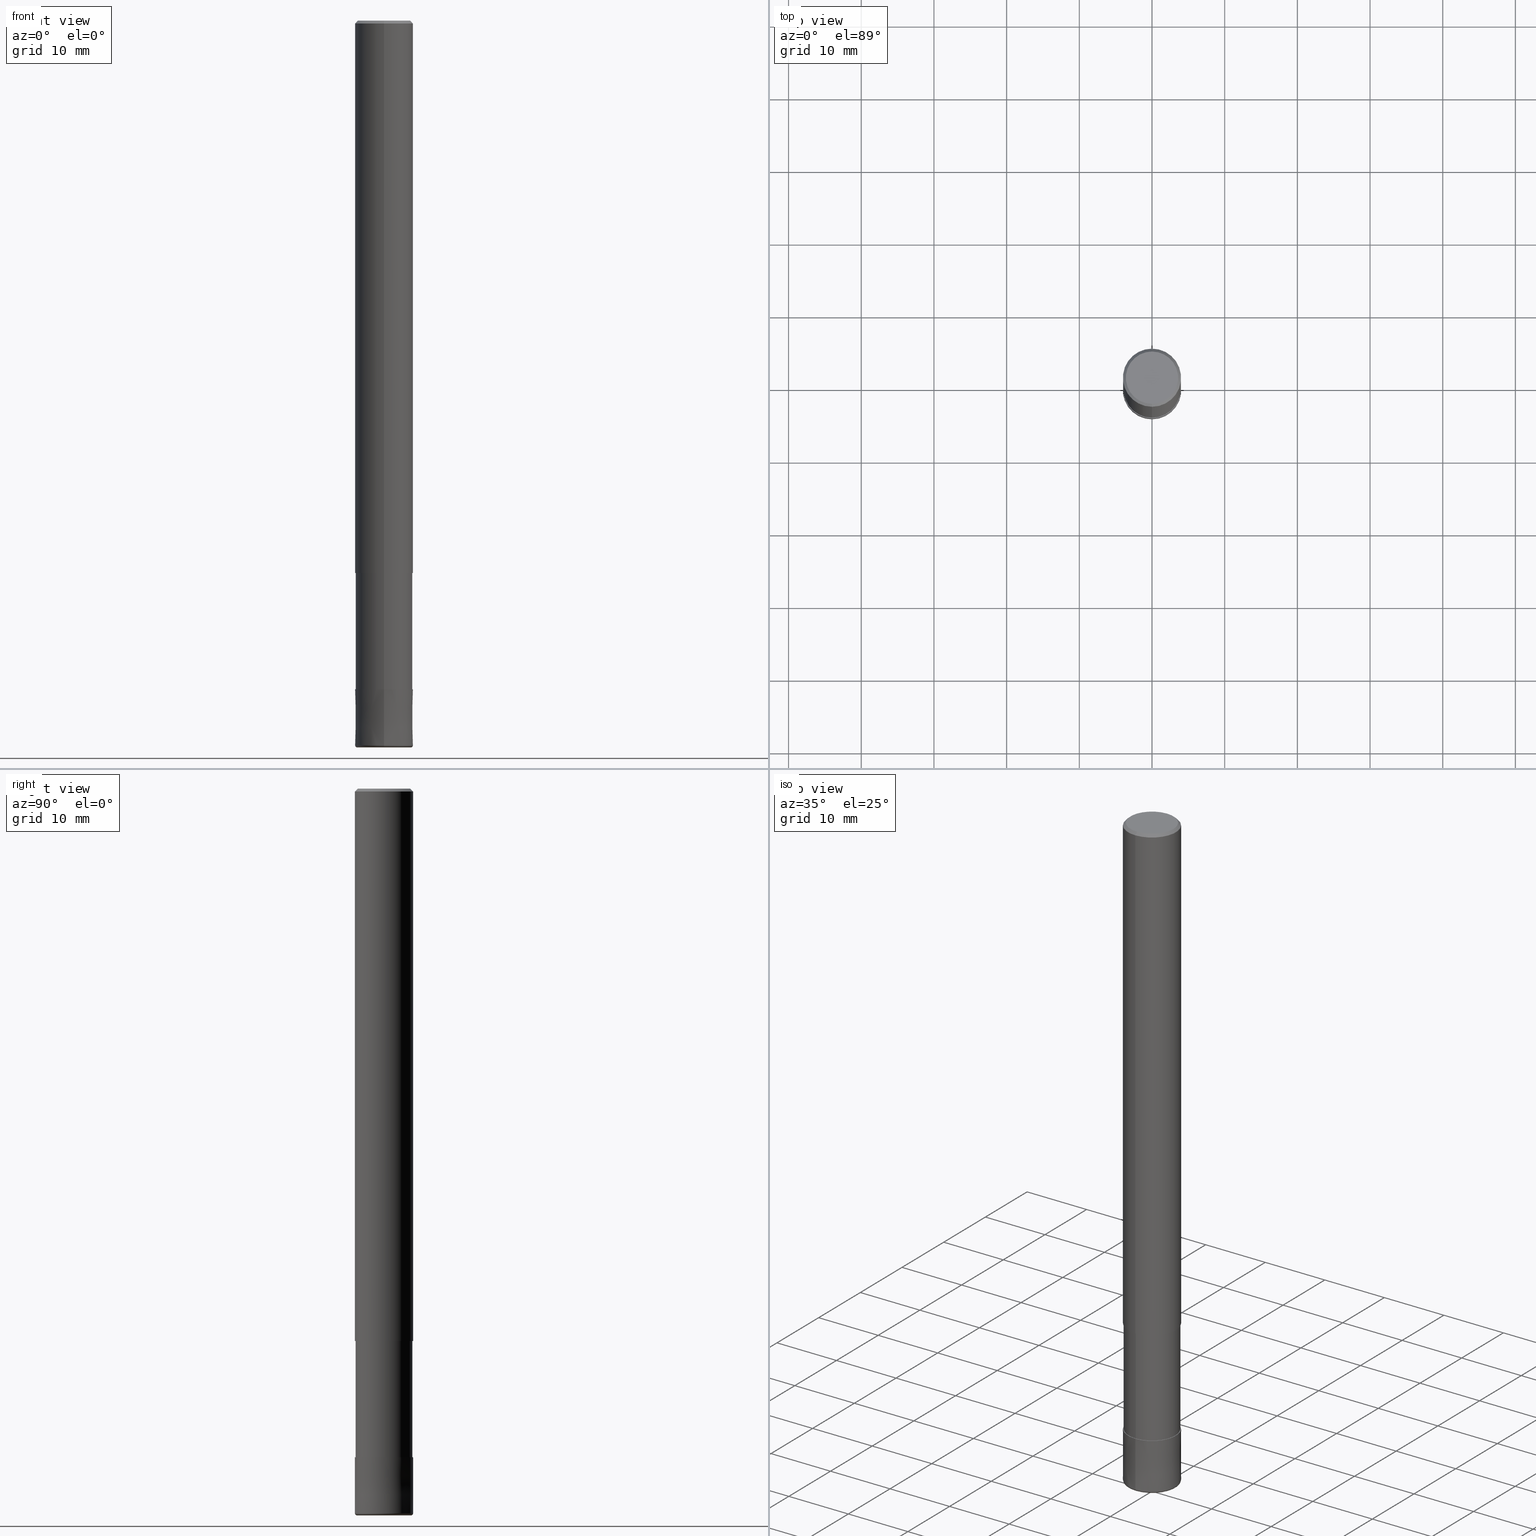
[diagram: canonical four-view strip — front | top / right | iso, engineering-drawing reading convention]
A machine part, canonical four-view strip (front | top / right | iso — engineering-drawing reading convention). The complete STEP part file that produces these views, byte-faithful:
ISO-10303-21;
HEADER;
FILE_DESCRIPTION(('no description'),'unknown implementation level');
FILE_NAME('CRRS4080-03-24-Huellk.stp','  ',('CIMSOURCE GmbH'),('CADClick - KiM GmbH - www.kimweb.de'),'unknown preprocess','ACIS','unknown authorization');
FILE_SCHEMA(('automotive_design'));
ENDSEC;
DATA;
#1=MECHANICAL_DESIGN_GEOMETRIC_PRESENTATION_REPRESENTATION(' ',(#14,#15,#16,#17,#18,#19,#20,#21,#22,#23,#24,#25,#26,#27,#28,#29,#30,#31,#32,#33,#34,#35,#36,#37,#38,#39,#40,#41,#42,#43,#44,#45,#46,#47,#48,#49,#50,#51,#52,#53,#54,#55,#56,#57,#58,#59,#60,#61,#62,#63,#64,#65,#66,#67,#68,#69,#70,#71,#72),#10);
#2=PRODUCT_DEFINITION_CONTEXT('',#73,'design');
#3=APPLICATION_PROTOCOL_DEFINITION('INTERNATIONAL STANDARD','automotive_design',1994,#73);
#4=PRODUCT_CATEGORY_RELATIONSHIP('NONE','NONE',#74,#75);
#5=SHAPE_DEFINITION_REPRESENTATION(#76,#77);
#6=PRODUCT_DEFINITION_CONTEXT('',#78,'design');
#7=APPLICATION_PROTOCOL_DEFINITION('INTERNATIONAL STANDARD','automotive_design',1994,#78);
#8=PRODUCT_CATEGORY_RELATIONSHIP('NONE','NONE',#79,#80);
#9=SHAPE_DEFINITION_REPRESENTATION(#81,#82);
#10= (GEOMETRIC_REPRESENTATION_CONTEXT(3)GLOBAL_UNCERTAINTY_ASSIGNED_CONTEXT((#85))GLOBAL_UNIT_ASSIGNED_CONTEXT((#87,#88,#89))REPRESENTATION_CONTEXT('NONE','WORKSPACE'));
#14=STYLED_ITEM('',(#91),#92);
#15=STYLED_ITEM('',(#93),#94);
#16=STYLED_ITEM('',(#95),#96);
#17=STYLED_ITEM('',(#97),#98);
#18=STYLED_ITEM('',(#99),#100);
#19=STYLED_ITEM('',(#101),#102);
#20=STYLED_ITEM('',(#103),#104);
#21=STYLED_ITEM('',(#105),#106);
#22=STYLED_ITEM('',(#107),#108);
#23=STYLED_ITEM('',(#109),#110);
#24=STYLED_ITEM('',(#111),#112);
#25=STYLED_ITEM('',(#113),#114);
#26=STYLED_ITEM('',(#115),#116);
#27=STYLED_ITEM('',(#117),#118);
#28=STYLED_ITEM('',(#119),#120);
#29=STYLED_ITEM('',(#121),#122);
#30=STYLED_ITEM('',(#123),#124);
#31=STYLED_ITEM('',(#125),#126);
#32=STYLED_ITEM('',(#127),#128);
#33=STYLED_ITEM('',(#129),#130);
#34=STYLED_ITEM('',(#131),#132);
#35=STYLED_ITEM('',(#133),#134);
#36=STYLED_ITEM('',(#135),#136);
#37=STYLED_ITEM('',(#137),#138);
#38=STYLED_ITEM('',(#139),#140);
#39=STYLED_ITEM('',(#141),#142);
#40=STYLED_ITEM('',(#143),#144);
#41=STYLED_ITEM('',(#145),#146);
#42=STYLED_ITEM('',(#147),#148);
#43=STYLED_ITEM('',(#149),#150);
#44=STYLED_ITEM('',(#151),#152);
#45=STYLED_ITEM('',(#153),#154);
#46=STYLED_ITEM('',(#155),#156);
#47=STYLED_ITEM('',(#157),#158);
#48=STYLED_ITEM('',(#159),#160);
#49=STYLED_ITEM('',(#161),#162);
#50=STYLED_ITEM('',(#163),#164);
#51=STYLED_ITEM('',(#165),#166);
#52=STYLED_ITEM('',(#167),#168);
#53=STYLED_ITEM('',(#169),#170);
#54=STYLED_ITEM('',(#171),#172);
#55=STYLED_ITEM('',(#173),#174);
#56=STYLED_ITEM('',(#175),#176);
#57=STYLED_ITEM('',(#177),#178);
#58=STYLED_ITEM('',(#179),#180);
#59=STYLED_ITEM('',(#181),#182);
#60=STYLED_ITEM('',(#183),#184);
#61=STYLED_ITEM('',(#185),#186);
#62=STYLED_ITEM('',(#187),#188);
#63=STYLED_ITEM('',(#189),#190);
#64=STYLED_ITEM('',(#191),#192);
#65=STYLED_ITEM('',(#193),#194);
#66=STYLED_ITEM('',(#195),#196);
#67=STYLED_ITEM('',(#197),#198);
#68=STYLED_ITEM('',(#199),#200);
#69=STYLED_ITEM('',(#201),#202);
#70=STYLED_ITEM('',(#203),#204);
#71=STYLED_ITEM('',(#205),#206);
#72=STYLED_ITEM('',(#207),#208);
#73=APPLICATION_CONTEXT(' ');
#74=PRODUCT_CATEGORY('part','NONE');
#75=PRODUCT_RELATED_PRODUCT_CATEGORY('detail',' ',(#209));
#76=PRODUCT_DEFINITION_SHAPE('NONE','NONE',#210);
#77=ADVANCED_BREP_SHAPE_REPRESENTATION('1',(#102,#211),#10);
#78=APPLICATION_CONTEXT(' ');
#79=PRODUCT_CATEGORY('part','NONE');
#80=PRODUCT_RELATED_PRODUCT_CATEGORY('detail',' ',(#212));
#81=PRODUCT_DEFINITION_SHAPE('NONE','NONE',#213);
#82=ADVANCED_BREP_SHAPE_REPRESENTATION('2',(#100,#214),#10);
#85=UNCERTAINTY_MEASURE_WITH_UNIT(LENGTH_MEASURE(1.0E-006),#87,'','');
#87= (CONVERSION_BASED_UNIT('MILLIMETRE',#217)LENGTH_UNIT()NAMED_UNIT(#220));
#88= (NAMED_UNIT(#222)PLANE_ANGLE_UNIT()SI_UNIT($,.RADIAN.));
#89= (NAMED_UNIT(#222)SOLID_ANGLE_UNIT()SI_UNIT($,.STERADIAN.));
#91=PRESENTATION_STYLE_ASSIGNMENT((#228));
#92=VERTEX_POINT('',#229);
#93=PRESENTATION_STYLE_ASSIGNMENT((#230));
#94=ADVANCED_FACE('',(#231),#232,.T.);
#95=PRESENTATION_STYLE_ASSIGNMENT((#233));
#96=VERTEX_POINT('',#234);
#97=PRESENTATION_STYLE_ASSIGNMENT((#235));
#98=EDGE_CURVE('',#204,#154,#236,.T.);
#99=PRESENTATION_STYLE_ASSIGNMENT((#237));
#100=MANIFOLD_SOLID_BREP('2',#238);
#101=PRESENTATION_STYLE_ASSIGNMENT((#239));
#102=MANIFOLD_SOLID_BREP('1',#240);
#103=PRESENTATION_STYLE_ASSIGNMENT((#241));
#104=EDGE_CURVE('',#128,#92,#242,.T.);
#105=PRESENTATION_STYLE_ASSIGNMENT((#243));
#106=EDGE_CURVE('',#160,#92,#244,.T.);
#107=PRESENTATION_STYLE_ASSIGNMENT((#245));
#108=ADVANCED_FACE('',(#246),#247,.T.);
#109=PRESENTATION_STYLE_ASSIGNMENT((#248));
#110=EDGE_CURVE('',#154,#204,#249,.T.);
#111=PRESENTATION_STYLE_ASSIGNMENT((#250));
#112=VERTEX_POINT('',#251);
#113=PRESENTATION_STYLE_ASSIGNMENT((#252));
#114=EDGE_CURVE('',#116,#128,#253,.T.);
#115=PRESENTATION_STYLE_ASSIGNMENT((#254));
#116=VERTEX_POINT('',#255);
#117=PRESENTATION_STYLE_ASSIGNMENT((#256));
#118=EDGE_CURVE('',#132,#170,#257,.T.);
#119=PRESENTATION_STYLE_ASSIGNMENT((#258));
#120=VERTEX_POINT('',#259);
#121=PRESENTATION_STYLE_ASSIGNMENT((#260));
#122=VERTEX_POINT('',#261);
#123=PRESENTATION_STYLE_ASSIGNMENT((#262));
#124=EDGE_CURVE('',#92,#160,#263,.T.);
#125=PRESENTATION_STYLE_ASSIGNMENT((#264));
#126=EDGE_CURVE('',#154,#122,#265,.T.);
#127=PRESENTATION_STYLE_ASSIGNMENT((#266));
#128=VERTEX_POINT('',#267);
#129=PRESENTATION_STYLE_ASSIGNMENT((#268));
#130=ADVANCED_FACE('',(#269),#270,.T.);
#131=PRESENTATION_STYLE_ASSIGNMENT((#271));
#132=VERTEX_POINT('',#272);
#133=PRESENTATION_STYLE_ASSIGNMENT((#273));
#134=ADVANCED_FACE('',(#274),#275,.T.);
#135=PRESENTATION_STYLE_ASSIGNMENT((#276));
#136=EDGE_CURVE('',#112,#116,#277,.T.);
#137=PRESENTATION_STYLE_ASSIGNMENT((#278));
#138=EDGE_CURVE('',#200,#194,#279,.T.);
#139=PRESENTATION_STYLE_ASSIGNMENT((#280));
#140=ADVANCED_FACE('',(#281),#282,.T.);
#141=PRESENTATION_STYLE_ASSIGNMENT((#283));
#142=EDGE_CURVE('',#178,#96,#284,.T.);
#143=PRESENTATION_STYLE_ASSIGNMENT((#285));
#144=EDGE_CURVE('',#154,#96,#286,.T.);
#145=PRESENTATION_STYLE_ASSIGNMENT((#287));
#146=EDGE_CURVE('',#122,#172,#288,.T.);
#147=PRESENTATION_STYLE_ASSIGNMENT((#289));
#148=ADVANCED_FACE('',(#290),#291,.T.);
#149=PRESENTATION_STYLE_ASSIGNMENT((#292));
#150=ADVANCED_FACE('',(#293),#294,.T.);
#151=PRESENTATION_STYLE_ASSIGNMENT((#295));
#152=ADVANCED_FACE('',(#296,#297),#298,.T.);
#153=PRESENTATION_STYLE_ASSIGNMENT((#299));
#154=VERTEX_POINT('',#300);
#155=PRESENTATION_STYLE_ASSIGNMENT((#301));
#156=EDGE_CURVE('',#170,#200,#302,.T.);
#157=PRESENTATION_STYLE_ASSIGNMENT((#303));
#158=ADVANCED_FACE('',(#304),#305,.T.);
#159=PRESENTATION_STYLE_ASSIGNMENT((#306));
#160=VERTEX_POINT('',#307);
#161=PRESENTATION_STYLE_ASSIGNMENT((#308));
#162=EDGE_CURVE('',#128,#120,#309,.T.);
#163=PRESENTATION_STYLE_ASSIGNMENT((#310));
#164=EDGE_CURVE('',#178,#204,#311,.T.);
#165=PRESENTATION_STYLE_ASSIGNMENT((#312));
#166=ADVANCED_FACE('',(#313),#314,.T.);
#167=PRESENTATION_STYLE_ASSIGNMENT((#315));
#168=EDGE_CURVE('',#200,#170,#316,.T.);
#169=PRESENTATION_STYLE_ASSIGNMENT((#317));
#170=VERTEX_POINT('',#318);
#171=PRESENTATION_STYLE_ASSIGNMENT((#319));
#172=VERTEX_POINT('',#320);
#173=PRESENTATION_STYLE_ASSIGNMENT((#321));
#174=EDGE_CURVE('',#194,#132,#322,.T.);
#175=PRESENTATION_STYLE_ASSIGNMENT((#323));
#176=EDGE_CURVE('',#96,#178,#324,.T.);
#177=PRESENTATION_STYLE_ASSIGNMENT((#325));
#178=VERTEX_POINT('',#326);
#179=PRESENTATION_STYLE_ASSIGNMENT((#327));
#180=ADVANCED_FACE('',(#328),#329,.T.);
#181=PRESENTATION_STYLE_ASSIGNMENT((#330));
#182=ADVANCED_FACE('',(#331),#332,.T.);
#183=PRESENTATION_STYLE_ASSIGNMENT((#333));
#184=EDGE_CURVE('',#172,#122,#334,.T.);
#185=PRESENTATION_STYLE_ASSIGNMENT((#335));
#186=ADVANCED_FACE('',(#336),#337,.T.);
#187=PRESENTATION_STYLE_ASSIGNMENT((#338));
#188=EDGE_CURVE('',#172,#204,#339,.T.);
#189=PRESENTATION_STYLE_ASSIGNMENT((#340));
#190=EDGE_CURVE('',#116,#112,#341,.T.);
#191=PRESENTATION_STYLE_ASSIGNMENT((#342));
#192=EDGE_CURVE('',#120,#112,#343,.T.);
#193=PRESENTATION_STYLE_ASSIGNMENT((#344));
#194=VERTEX_POINT('',#345);
#195=PRESENTATION_STYLE_ASSIGNMENT((#346));
#196=EDGE_CURVE('',#132,#194,#347,.T.);
#197=PRESENTATION_STYLE_ASSIGNMENT((#348));
#198=EDGE_CURVE('',#120,#128,#349,.T.);
#199=PRESENTATION_STYLE_ASSIGNMENT((#350));
#200=VERTEX_POINT('',#351);
#201=PRESENTATION_STYLE_ASSIGNMENT((#352));
#202=EDGE_CURVE('',#160,#120,#353,.T.);
#203=PRESENTATION_STYLE_ASSIGNMENT((#354));
#204=VERTEX_POINT('',#355);
#205=PRESENTATION_STYLE_ASSIGNMENT((#356));
#206=ADVANCED_FACE('',(#357),#358,.T.);
#207=PRESENTATION_STYLE_ASSIGNMENT((#359));
#208=ADVANCED_FACE('',(#360),#361,.T.);
#209=PRODUCT('1','1','PART-1-DESC',(#362));
#210=PRODUCT_DEFINITION('NONE','NONE',#363,#2);
#211=AXIS2_PLACEMENT_3D('',#364,#365,#366);
#212=PRODUCT('2','2','PART-2-DESC',(#367));
#213=PRODUCT_DEFINITION('NONE','NONE',#368,#6);
#214=AXIS2_PLACEMENT_3D('',#369,#370,#371);
#217=LENGTH_MEASURE_WITH_UNIT(LENGTH_MEASURE(1.0),#372);
#220=DIMENSIONAL_EXPONENTS(1.0,0.0,0.0,0.0,0.0,0.0,0.0);
#222=DIMENSIONAL_EXPONENTS(0.0,0.0,0.0,0.0,0.0,0.0,0.0);
#228=POINT_STYLE(' ',#373,POSITIVE_LENGTH_MEASURE(1.0E-006),#374);
#229=CARTESIAN_POINT('',(0.0,4.0,-76.0));
#230=SURFACE_STYLE_USAGE(.BOTH.,#375);
#231=FACE_OUTER_BOUND('',#376,.T.);
#232=CYLINDRICAL_SURFACE('',#377,4.0);
#233=POINT_STYLE(' ',#378,POSITIVE_LENGTH_MEASURE(1.0E-006),#379);
#234=CARTESIAN_POINT('',(4.89830295465413E-016,-3.9999,-92.0));
#235=CURVE_STYLE('',#380,POSITIVE_LENGTH_MEASURE(1.0E-006),#381);
#236=CIRCLE('',#382,4.0);
#237=SURFACE_STYLE_USAGE(.BOTH.,#383);
#238=CLOSED_SHELL('',(#130,#206,#148,#158,#182,#140));
#239=SURFACE_STYLE_USAGE(.BOTH.,#384);
#240=CLOSED_SHELL('',(#150,#94,#180,#152,#186,#108,#166,#134,#208));
#241=CURVE_STYLE('',#385,POSITIVE_LENGTH_MEASURE(1.0E-006),#386);
#242=LINE('',#387,#388);
#243=CURVE_STYLE('',#389,POSITIVE_LENGTH_MEASURE(1.0E-006),#390);
#244=CIRCLE('',#391,4.0);
#245=SURFACE_STYLE_USAGE(.BOTH.,#392);
#246=FACE_OUTER_BOUND('',#393,.T.);
#247=CONICAL_SURFACE('',#394,3.8,0.785398163397441);
#248=CURVE_STYLE('',#395,POSITIVE_LENGTH_MEASURE(1.0E-006),#396);
#249=CIRCLE('',#397,4.0);
#250=POINT_STYLE(' ',#398,POSITIVE_LENGTH_MEASURE(1.0E-006),#399);
#251=CARTESIAN_POINT('',(4.40858287376056E-016,-3.6,0.0));
#252=CURVE_STYLE('',#400,POSITIVE_LENGTH_MEASURE(1.0E-006),#401);
#253=LINE('',#402,#403);
#254=POINT_STYLE(' ',#404,POSITIVE_LENGTH_MEASURE(1.0E-006),#405);
#255=CARTESIAN_POINT('',(0.0,3.6,0.0));
#256=CURVE_STYLE('',#406,POSITIVE_LENGTH_MEASURE(1.0E-006),#407);
#257=LINE('',#408,#409);
#258=POINT_STYLE(' ',#410,POSITIVE_LENGTH_MEASURE(1.0E-006),#411);
#259=CARTESIAN_POINT('',(4.89842541528951E-016,-4.0,-0.400000000000006));
#260=POINT_STYLE(' ',#412,POSITIVE_LENGTH_MEASURE(1.0E-006),#413);
#261=CARTESIAN_POINT('',(4.5310435091428E-016,-3.7,-100.0));
#262=CURVE_STYLE('',#414,POSITIVE_LENGTH_MEASURE(1.0E-006),#415);
#263=CIRCLE('',#416,4.0);
#264=CURVE_STYLE('',#417,POSITIVE_LENGTH_MEASURE(1.0E-006),#418);
#265=CIRCLE('',#419,0.300000000000002);
#266=POINT_STYLE(' ',#420,POSITIVE_LENGTH_MEASURE(1.0E-006),#421);
#267=CARTESIAN_POINT('',(0.0,4.0,-0.400000000000006));
#268=SURFACE_STYLE_USAGE(.BOTH.,#422);
#269=FACE_OUTER_BOUND('',#423,.T.);
#270=TOROIDAL_SURFACE('',#424,3.7,0.300000000000002);
#271=POINT_STYLE(' ',#425,POSITIVE_LENGTH_MEASURE(1.0E-006),#426);
#272=CARTESIAN_POINT('',(4.7881496131278E-016,-3.90995,-92.0));
#273=SURFACE_STYLE_USAGE(.BOTH.,#427);
#274=FACE_OUTER_BOUND('',#428,.T.);
#275=CYLINDRICAL_SURFACE('',#429,3.90995);
#276=CURVE_STYLE('',#430,POSITIVE_LENGTH_MEASURE(1.0E-006),#431);
#277=CIRCLE('',#432,3.6);
#278=CURVE_STYLE('',#433,POSITIVE_LENGTH_MEASURE(1.0E-006),#434);
#279=LINE('',#435,#436);
#280=SURFACE_STYLE_USAGE(.BOTH.,#437);
#281=FACE_OUTER_BOUND('',#438,.T.);
#282=PLANE('',#439);
#283=CURVE_STYLE('',#440,POSITIVE_LENGTH_MEASURE(1.0E-006),#441);
#284=CIRCLE('',#442,3.9999);
#285=CURVE_STYLE('',#443,POSITIVE_LENGTH_MEASURE(1.0E-006),#444);
#286=LINE('',#445,#446);
#287=CURVE_STYLE('',#447,POSITIVE_LENGTH_MEASURE(1.0E-006),#448);
#288=CIRCLE('',#449,3.7);
#289=SURFACE_STYLE_USAGE(.BOTH.,#450);
#290=FACE_OUTER_BOUND('',#451,.T.);
#291=PLANE('',#452);
#292=SURFACE_STYLE_USAGE(.BOTH.,#453);
#293=FACE_OUTER_BOUND('',#454,.T.);
#294=CYLINDRICAL_SURFACE('',#455,3.90995);
#295=SURFACE_STYLE_USAGE(.BOTH.,#456);
#296=FACE_OUTER_BOUND('',#457,.T.);
#297=FACE_BOUND('',#458,.T.);
#298=PLANE('',#459);
#299=POINT_STYLE(' ',#460,POSITIVE_LENGTH_MEASURE(1.0E-006),#461);
#300=CARTESIAN_POINT('',(4.89842541528951E-016,-4.0,-99.7));
#301=CURVE_STYLE('',#462,POSITIVE_LENGTH_MEASURE(1.0E-006),#463);
#302=CIRCLE('',#464,3.90995);
#303=SURFACE_STYLE_USAGE(.BOTH.,#465);
#304=FACE_OUTER_BOUND('',#466,.T.);
#305=CONICAL_SURFACE('',#467,3.99995,1.29870129863103E-005);
#306=POINT_STYLE(' ',#468,POSITIVE_LENGTH_MEASURE(1.0E-006),#469);
#307=CARTESIAN_POINT('',(4.89842541528951E-016,-4.0,-76.0));
#308=CURVE_STYLE('',#470,POSITIVE_LENGTH_MEASURE(1.0E-006),#471);
#309=CIRCLE('',#472,4.0);
#310=CURVE_STYLE('',#473,POSITIVE_LENGTH_MEASURE(1.0E-006),#474);
#311=LINE('',#475,#476);
#312=SURFACE_STYLE_USAGE(.BOTH.,#477);
#313=FACE_OUTER_BOUND('',#478,.T.);
#314=CYLINDRICAL_SURFACE('',#479,4.0);
#315=CURVE_STYLE('',#480,POSITIVE_LENGTH_MEASURE(1.0E-006),#481);
#316=CIRCLE('',#482,3.90995);
#317=POINT_STYLE(' ',#483,POSITIVE_LENGTH_MEASURE(1.0E-006),#484);
#318=CARTESIAN_POINT('',(4.7881496131278E-016,-3.90995,-76.0));
#319=POINT_STYLE(' ',#485,POSITIVE_LENGTH_MEASURE(1.0E-006),#486);
#320=CARTESIAN_POINT('',(0.0,3.7,-100.0));
#321=CURVE_STYLE('',#487,POSITIVE_LENGTH_MEASURE(1.0E-006),#488);
#322=CIRCLE('',#489,3.90995);
#323=CURVE_STYLE('',#490,POSITIVE_LENGTH_MEASURE(1.0E-006),#491);
#324=CIRCLE('',#492,3.9999);
#325=POINT_STYLE(' ',#493,POSITIVE_LENGTH_MEASURE(1.0E-006),#494);
#326=CARTESIAN_POINT('',(0.0,3.9999,-92.0));
#327=SURFACE_STYLE_USAGE(.BOTH.,#495);
#328=FACE_OUTER_BOUND('',#496,.T.);
#329=CONICAL_SURFACE('',#497,3.8,0.785398163397441);
#330=SURFACE_STYLE_USAGE(.BOTH.,#498);
#331=FACE_OUTER_BOUND('',#499,.T.);
#332=TOROIDAL_SURFACE('',#500,3.7,0.300000000000002);
#333=CURVE_STYLE('',#501,POSITIVE_LENGTH_MEASURE(1.0E-006),#502);
#334=CIRCLE('',#503,3.7);
#335=SURFACE_STYLE_USAGE(.BOTH.,#504);
#336=FACE_OUTER_BOUND('',#505,.T.);
#337=PLANE('',#506);
#338=CURVE_STYLE('',#507,POSITIVE_LENGTH_MEASURE(1.0E-006),#508);
#339=CIRCLE('',#509,0.300000000000002);
#340=CURVE_STYLE('',#510,POSITIVE_LENGTH_MEASURE(1.0E-006),#511);
#341=CIRCLE('',#512,3.6);
#342=CURVE_STYLE('',#513,POSITIVE_LENGTH_MEASURE(1.0E-006),#514);
#343=LINE('',#515,#516);
#344=POINT_STYLE(' ',#517,POSITIVE_LENGTH_MEASURE(1.0E-006),#518);
#345=CARTESIAN_POINT('',(0.0,3.90995,-92.0));
#346=CURVE_STYLE('',#519,POSITIVE_LENGTH_MEASURE(1.0E-006),#520);
#347=CIRCLE('',#521,3.90995);
#348=CURVE_STYLE('',#522,POSITIVE_LENGTH_MEASURE(1.0E-006),#523);
#349=CIRCLE('',#524,4.0);
#350=POINT_STYLE(' ',#525,POSITIVE_LENGTH_MEASURE(1.0E-006),#526);
#351=CARTESIAN_POINT('',(0.0,3.90995,-76.0));
#352=CURVE_STYLE('',#527,POSITIVE_LENGTH_MEASURE(1.0E-006),#528);
#353=LINE('',#529,#530);
#354=POINT_STYLE(' ',#531,POSITIVE_LENGTH_MEASURE(1.0E-006),#532);
#355=CARTESIAN_POINT('',(0.0,4.0,-99.7));
#356=SURFACE_STYLE_USAGE(.BOTH.,#533);
#357=FACE_OUTER_BOUND('',#534,.T.);
#358=CONICAL_SURFACE('',#535,3.99995,1.29870129863103E-005);
#359=SURFACE_STYLE_USAGE(.BOTH.,#536);
#360=FACE_OUTER_BOUND('',#537,.T.);
#361=PLANE('',#538);
#362=PRODUCT_CONTEXT('',#73,'mechanical');
#363=PRODUCT_DEFINITION_FORMATION_WITH_SPECIFIED_SOURCE(' ','NONE',#209,.NOT_KNOWN.);
#364=CARTESIAN_POINT('',(0.0,0.0,0.0));
#365=DIRECTION('',(0.0,0.0,1.0));
#366=DIRECTION('',(1.0,0.0,0.0));
#367=PRODUCT_CONTEXT('',#78,'mechanical');
#368=PRODUCT_DEFINITION_FORMATION_WITH_SPECIFIED_SOURCE(' ','NONE',#212,.NOT_KNOWN.);
#369=CARTESIAN_POINT('',(0.0,0.0,0.0));
#370=DIRECTION('',(0.0,0.0,1.0));
#371=DIRECTION('',(1.0,0.0,0.0));
#372= (NAMED_UNIT(#220)LENGTH_UNIT()SI_UNIT(.MILLI.,.METRE.));
#373=PRE_DEFINED_MARKER('');
#374=COLOUR_RGB('',0.498039215803146,0.498039215803146,0.498039215803146);
#375=SURFACE_SIDE_STYLE('',(#540));
#376=EDGE_LOOP('',(#541,#542,#543,#544));
#377=AXIS2_PLACEMENT_3D('',#545,#546,#547);
#378=PRE_DEFINED_MARKER('');
#379=COLOUR_RGB('',0.800000011920929,0.800000011920929,0.800000011920929);
#380=DRAUGHTING_PRE_DEFINED_CURVE_FONT('continuous');
#381=COLOUR_RGB('',0.800000011920929,0.800000011920929,0.800000011920929);
#382=AXIS2_PLACEMENT_3D('',#548,#549,#550);
#383=SURFACE_SIDE_STYLE('',(#551));
#384=SURFACE_SIDE_STYLE('',(#552));
#385=DRAUGHTING_PRE_DEFINED_CURVE_FONT('continuous');
#386=COLOUR_RGB('',0.498039215803146,0.498039215803146,0.498039215803146);
#387=CARTESIAN_POINT('',(-4.89842541528951E-016,4.0,-38.2));
#388=VECTOR('',#553,1.0);
#389=DRAUGHTING_PRE_DEFINED_CURVE_FONT('continuous');
#390=COLOUR_RGB('',0.498039215803146,0.498039215803146,0.498039215803146);
#391=AXIS2_PLACEMENT_3D('',#554,#555,#556);
#392=SURFACE_SIDE_STYLE('',(#557));
#393=EDGE_LOOP('',(#558,#559,#560,#561));
#394=AXIS2_PLACEMENT_3D('',#562,#563,#564);
#395=DRAUGHTING_PRE_DEFINED_CURVE_FONT('continuous');
#396=COLOUR_RGB('',0.800000011920929,0.800000011920929,0.800000011920929);
#397=AXIS2_PLACEMENT_3D('',#565,#566,#567);
#398=PRE_DEFINED_MARKER('');
#399=COLOUR_RGB('',0.498039215803146,0.498039215803146,0.498039215803146);
#400=DRAUGHTING_PRE_DEFINED_CURVE_FONT('continuous');
#401=COLOUR_RGB('',0.498039215803146,0.498039215803146,0.498039215803146);
#402=CARTESIAN_POINT('',(-4.65350414452503E-016,3.8,-0.200000000000003));
#403=VECTOR('',#568,1.0);
#404=PRE_DEFINED_MARKER('');
#405=COLOUR_RGB('',0.498039215803146,0.498039215803146,0.498039215803146);
#406=DRAUGHTING_PRE_DEFINED_CURVE_FONT('continuous');
#407=COLOUR_RGB('',0.498039215803146,0.498039215803146,0.498039215803146);
#408=CARTESIAN_POINT('',(4.7881496131278E-016,-3.90995,-84.0));
#409=VECTOR('',#569,1.0);
#410=PRE_DEFINED_MARKER('');
#411=COLOUR_RGB('',0.498039215803146,0.498039215803146,0.498039215803146);
#412=PRE_DEFINED_MARKER('');
#413=COLOUR_RGB('',0.800000011920929,0.800000011920929,0.800000011920929);
#414=DRAUGHTING_PRE_DEFINED_CURVE_FONT('continuous');
#415=COLOUR_RGB('',0.498039215803146,0.498039215803146,0.498039215803146);
#416=AXIS2_PLACEMENT_3D('',#570,#571,#572);
#417=DRAUGHTING_PRE_DEFINED_CURVE_FONT('continuous');
#418=COLOUR_RGB('',0.800000011920929,0.800000011920929,0.800000011920929);
#419=AXIS2_PLACEMENT_3D('',#573,#574,#575);
#420=PRE_DEFINED_MARKER('');
#421=COLOUR_RGB('',0.498039215803146,0.498039215803146,0.498039215803146);
#422=SURFACE_SIDE_STYLE('',(#576));
#423=EDGE_LOOP('',(#577,#578,#579,#580));
#424=AXIS2_PLACEMENT_3D('',#581,#582,#583);
#425=PRE_DEFINED_MARKER('');
#426=COLOUR_RGB('',0.498039215803146,0.498039215803146,0.498039215803146);
#427=SURFACE_SIDE_STYLE('',(#584));
#428=EDGE_LOOP('',(#585,#586,#587,#588));
#429=AXIS2_PLACEMENT_3D('',#589,#590,#591);
#430=DRAUGHTING_PRE_DEFINED_CURVE_FONT('continuous');
#431=COLOUR_RGB('',0.498039215803146,0.498039215803146,0.498039215803146);
#432=AXIS2_PLACEMENT_3D('',#592,#593,#594);
#433=DRAUGHTING_PRE_DEFINED_CURVE_FONT('continuous');
#434=COLOUR_RGB('',0.498039215803146,0.498039215803146,0.498039215803146);
#435=CARTESIAN_POINT('',(-4.7881496131278E-016,3.90995,-84.0));
#436=VECTOR('',#595,1.0);
#437=SURFACE_SIDE_STYLE('',(#596));
#438=EDGE_LOOP('',(#597,#598));
#439=AXIS2_PLACEMENT_3D('',#599,#600,#601);
#440=DRAUGHTING_PRE_DEFINED_CURVE_FONT('continuous');
#441=COLOUR_RGB('',0.800000011920929,0.800000011920929,0.800000011920929);
#442=AXIS2_PLACEMENT_3D('',#602,#603,#604);
#443=DRAUGHTING_PRE_DEFINED_CURVE_FONT('continuous');
#444=COLOUR_RGB('',0.800000011920929,0.800000011920929,0.800000011920929);
#445=CARTESIAN_POINT('',(4.89836418497182E-016,-3.99995,-95.85));
#446=VECTOR('',#605,1.0);
#447=DRAUGHTING_PRE_DEFINED_CURVE_FONT('continuous');
#448=COLOUR_RGB('',0.800000011920929,0.800000011920929,0.800000011920929);
#449=AXIS2_PLACEMENT_3D('',#606,#607,#608);
#450=SURFACE_SIDE_STYLE('',(#609));
#451=EDGE_LOOP('',(#610,#611));
#452=AXIS2_PLACEMENT_3D('',#612,#613,#614);
#453=SURFACE_SIDE_STYLE('',(#615));
#454=EDGE_LOOP('',(#616,#617,#618,#619));
#455=AXIS2_PLACEMENT_3D('',#620,#621,#622);
#456=SURFACE_SIDE_STYLE('',(#623));
#457=EDGE_LOOP('',(#624,#625));
#458=EDGE_LOOP('',(#626,#627));
#459=AXIS2_PLACEMENT_3D('',#628,#629,#630);
#460=PRE_DEFINED_MARKER('');
#461=COLOUR_RGB('',0.800000011920929,0.800000011920929,0.800000011920929);
#462=DRAUGHTING_PRE_DEFINED_CURVE_FONT('continuous');
#463=COLOUR_RGB('',0.498039215803146,0.498039215803146,0.498039215803146);
#464=AXIS2_PLACEMENT_3D('',#631,#632,#633);
#465=SURFACE_SIDE_STYLE('',(#634));
#466=EDGE_LOOP('',(#635,#636,#637,#638));
#467=AXIS2_PLACEMENT_3D('',#639,#640,#641);
#468=PRE_DEFINED_MARKER('');
#469=COLOUR_RGB('',0.498039215803146,0.498039215803146,0.498039215803146);
#470=DRAUGHTING_PRE_DEFINED_CURVE_FONT('continuous');
#471=COLOUR_RGB('',0.498039215803146,0.498039215803146,0.498039215803146);
#472=AXIS2_PLACEMENT_3D('',#642,#643,#644);
#473=DRAUGHTING_PRE_DEFINED_CURVE_FONT('continuous');
#474=COLOUR_RGB('',0.800000011920929,0.800000011920929,0.800000011920929);
#475=CARTESIAN_POINT('',(-4.89836418497182E-016,3.99995,-95.85));
#476=VECTOR('',#645,1.0);
#477=SURFACE_SIDE_STYLE('',(#646));
#478=EDGE_LOOP('',(#647,#648,#649,#650));
#479=AXIS2_PLACEMENT_3D('',#651,#652,#653);
#480=DRAUGHTING_PRE_DEFINED_CURVE_FONT('continuous');
#481=COLOUR_RGB('',0.498039215803146,0.498039215803146,0.498039215803146);
#482=AXIS2_PLACEMENT_3D('',#654,#655,#656);
#483=PRE_DEFINED_MARKER('');
#484=COLOUR_RGB('',0.498039215803146,0.498039215803146,0.498039215803146);
#485=PRE_DEFINED_MARKER('');
#486=COLOUR_RGB('',0.800000011920929,0.800000011920929,0.800000011920929);
#487=DRAUGHTING_PRE_DEFINED_CURVE_FONT('continuous');
#488=COLOUR_RGB('',0.498039215803146,0.498039215803146,0.498039215803146);
#489=AXIS2_PLACEMENT_3D('',#657,#658,#659);
#490=DRAUGHTING_PRE_DEFINED_CURVE_FONT('continuous');
#491=COLOUR_RGB('',0.800000011920929,0.800000011920929,0.800000011920929);
#492=AXIS2_PLACEMENT_3D('',#660,#661,#662);
#493=PRE_DEFINED_MARKER('');
#494=COLOUR_RGB('',0.800000011920929,0.800000011920929,0.800000011920929);
#495=SURFACE_SIDE_STYLE('',(#663));
#496=EDGE_LOOP('',(#664,#665,#666,#667));
#497=AXIS2_PLACEMENT_3D('',#668,#669,#670);
#498=SURFACE_SIDE_STYLE('',(#671));
#499=EDGE_LOOP('',(#672,#673,#674,#675));
#500=AXIS2_PLACEMENT_3D('',#676,#677,#678);
#501=DRAUGHTING_PRE_DEFINED_CURVE_FONT('continuous');
#502=COLOUR_RGB('',0.800000011920929,0.800000011920929,0.800000011920929);
#503=AXIS2_PLACEMENT_3D('',#679,#680,#681);
#504=SURFACE_SIDE_STYLE('',(#682));
#505=EDGE_LOOP('',(#683,#684));
#506=AXIS2_PLACEMENT_3D('',#685,#686,#687);
#507=DRAUGHTING_PRE_DEFINED_CURVE_FONT('continuous');
#508=COLOUR_RGB('',0.800000011920929,0.800000011920929,0.800000011920929);
#509=AXIS2_PLACEMENT_3D('',#688,#689,#690);
#510=DRAUGHTING_PRE_DEFINED_CURVE_FONT('continuous');
#511=COLOUR_RGB('',0.498039215803146,0.498039215803146,0.498039215803146);
#512=AXIS2_PLACEMENT_3D('',#691,#692,#693);
#513=DRAUGHTING_PRE_DEFINED_CURVE_FONT('continuous');
#514=COLOUR_RGB('',0.498039215803146,0.498039215803146,0.498039215803146);
#515=CARTESIAN_POINT('',(4.65350414452503E-016,-3.8,-0.200000000000003));
#516=VECTOR('',#694,1.0);
#517=PRE_DEFINED_MARKER('');
#518=COLOUR_RGB('',0.498039215803146,0.498039215803146,0.498039215803146);
#519=DRAUGHTING_PRE_DEFINED_CURVE_FONT('continuous');
#520=COLOUR_RGB('',0.498039215803146,0.498039215803146,0.498039215803146);
#521=AXIS2_PLACEMENT_3D('',#695,#696,#697);
#522=DRAUGHTING_PRE_DEFINED_CURVE_FONT('continuous');
#523=COLOUR_RGB('',0.498039215803146,0.498039215803146,0.498039215803146);
#524=AXIS2_PLACEMENT_3D('',#698,#699,#700);
#525=PRE_DEFINED_MARKER('');
#526=COLOUR_RGB('',0.498039215803146,0.498039215803146,0.498039215803146);
#527=DRAUGHTING_PRE_DEFINED_CURVE_FONT('continuous');
#528=COLOUR_RGB('',0.498039215803146,0.498039215803146,0.498039215803146);
#529=CARTESIAN_POINT('',(4.89842541528951E-016,-4.0,-38.2));
#530=VECTOR('',#701,1.0);
#531=PRE_DEFINED_MARKER('');
#532=COLOUR_RGB('',0.800000011920929,0.800000011920929,0.800000011920929);
#533=SURFACE_SIDE_STYLE('',(#702));
#534=EDGE_LOOP('',(#703,#704,#705,#706));
#535=AXIS2_PLACEMENT_3D('',#707,#708,#709);
#536=SURFACE_SIDE_STYLE('',(#710));
#537=EDGE_LOOP('',(#711,#712));
#538=AXIS2_PLACEMENT_3D('',#713,#714,#715);
#540=SURFACE_STYLE_FILL_AREA(#716);
#541=ORIENTED_EDGE('',*,*,#104,.F.);
#542=ORIENTED_EDGE('',*,*,#162,.T.);
#543=ORIENTED_EDGE('',*,*,#202,.F.);
#544=ORIENTED_EDGE('',*,*,#124,.F.);
#545=CARTESIAN_POINT('',(0.0,0.0,-38.2));
#546=DIRECTION('',(-0.0,-0.0,1.0));
#547=DIRECTION('',(0.0,1.0,0.0));
#548=CARTESIAN_POINT('',(0.0,0.0,-99.7));
#549=DIRECTION('',(0.0,0.0,-1.0));
#550=DIRECTION('',(0.0,1.0,0.0));
#551=SURFACE_STYLE_FILL_AREA(#717);
#552=SURFACE_STYLE_FILL_AREA(#718);
#553=DIRECTION('',(0.0,0.0,-1.0));
#554=CARTESIAN_POINT('',(0.0,0.0,-76.0));
#555=DIRECTION('',(0.0,0.0,-1.0));
#556=DIRECTION('',(0.0,1.0,0.0));
#557=SURFACE_STYLE_FILL_AREA(#719);
#558=ORIENTED_EDGE('',*,*,#114,.T.);
#559=ORIENTED_EDGE('',*,*,#198,.F.);
#560=ORIENTED_EDGE('',*,*,#192,.T.);
#561=ORIENTED_EDGE('',*,*,#136,.T.);
#562=CARTESIAN_POINT('',(0.0,0.0,-0.200000000000003));
#563=DIRECTION('',(0.0,-0.0,-1.0));
#564=DIRECTION('',(0.0,1.0,0.0));
#565=CARTESIAN_POINT('',(0.0,0.0,-99.7));
#566=DIRECTION('',(0.0,0.0,-1.0));
#567=DIRECTION('',(0.0,1.0,0.0));
#568=DIRECTION('',(-8.65927457071929E-017,0.707106781186542,-0.707106781186553));
#569=DIRECTION('',(-0.0,-0.0,1.0));
#570=CARTESIAN_POINT('',(0.0,0.0,-76.0));
#571=DIRECTION('',(0.0,0.0,-1.0));
#572=DIRECTION('',(0.0,1.0,0.0));
#573=CARTESIAN_POINT('',(4.53104350914279E-016,-3.7,-99.7));
#574=DIRECTION('',(1.0,1.22460635382238E-016,0.0));
#575=DIRECTION('',(1.22460635382238E-016,-1.0,-0.0));
#576=SURFACE_STYLE_FILL_AREA(#720);
#577=ORIENTED_EDGE('',*,*,#126,.F.);
#578=ORIENTED_EDGE('',*,*,#110,.T.);
#579=ORIENTED_EDGE('',*,*,#188,.F.);
#580=ORIENTED_EDGE('',*,*,#146,.F.);
#581=CARTESIAN_POINT('',(0.0,0.0,-99.7));
#582=DIRECTION('',(0.0,0.0,-1.0));
#583=DIRECTION('',(0.0,-1.0,0.0));
#584=SURFACE_STYLE_FILL_AREA(#721);
#585=ORIENTED_EDGE('',*,*,#138,.T.);
#586=ORIENTED_EDGE('',*,*,#196,.F.);
#587=ORIENTED_EDGE('',*,*,#118,.T.);
#588=ORIENTED_EDGE('',*,*,#156,.T.);
#589=CARTESIAN_POINT('',(0.0,0.0,-84.0));
#590=DIRECTION('',(-0.0,-0.0,1.0));
#591=DIRECTION('',(0.0,1.0,0.0));
#592=CARTESIAN_POINT('',(0.0,0.0,0.0));
#593=DIRECTION('',(0.0,0.0,-1.0));
#594=DIRECTION('',(0.0,1.0,0.0));
#595=DIRECTION('',(0.0,0.0,-1.0));
#596=SURFACE_STYLE_FILL_AREA(#722);
#597=ORIENTED_EDGE('',*,*,#184,.T.);
#598=ORIENTED_EDGE('',*,*,#146,.T.);
#599=CARTESIAN_POINT('',(0.0,1.85,-100.0));
#600=DIRECTION('',(0.0,0.0,-1.0));
#601=DIRECTION('',(0.0,1.0,0.0));
#602=CARTESIAN_POINT('',(0.0,0.0,-92.0));
#603=DIRECTION('',(0.0,0.0,-1.0));
#604=DIRECTION('',(0.0,1.0,0.0));
#605=DIRECTION('',(-1.59039786197622E-021,1.29870129859452E-005,0.999999999915669));
#606=CARTESIAN_POINT('',(0.0,0.0,-100.0));
#607=DIRECTION('',(0.0,0.0,-1.0));
#608=DIRECTION('',(0.0,1.0,0.0));
#609=SURFACE_STYLE_FILL_AREA(#723);
#610=ORIENTED_EDGE('',*,*,#142,.F.);
#611=ORIENTED_EDGE('',*,*,#176,.F.);
#612=CARTESIAN_POINT('',(0.0,1.99995,-92.0));
#613=DIRECTION('',(-0.0,0.0,1.0));
#614=DIRECTION('',(0.0,-1.0,0.0));
#615=SURFACE_STYLE_FILL_AREA(#724);
#616=ORIENTED_EDGE('',*,*,#138,.F.);
#617=ORIENTED_EDGE('',*,*,#168,.T.);
#618=ORIENTED_EDGE('',*,*,#118,.F.);
#619=ORIENTED_EDGE('',*,*,#174,.F.);
#620=CARTESIAN_POINT('',(0.0,0.0,-84.0));
#621=DIRECTION('',(-0.0,-0.0,1.0));
#622=DIRECTION('',(0.0,1.0,0.0));
#623=SURFACE_STYLE_FILL_AREA(#725);
#624=ORIENTED_EDGE('',*,*,#124,.T.);
#625=ORIENTED_EDGE('',*,*,#106,.T.);
#626=ORIENTED_EDGE('',*,*,#168,.F.);
#627=ORIENTED_EDGE('',*,*,#156,.F.);
#628=CARTESIAN_POINT('',(0.0,2.0,-76.0));
#629=DIRECTION('',(0.0,0.0,-1.0));
#630=DIRECTION('',(0.0,1.0,0.0));
#631=CARTESIAN_POINT('',(0.0,0.0,-76.0));
#632=DIRECTION('',(0.0,0.0,-1.0));
#633=DIRECTION('',(0.0,1.0,0.0));
#634=SURFACE_STYLE_FILL_AREA(#726);
#635=ORIENTED_EDGE('',*,*,#164,.T.);
#636=ORIENTED_EDGE('',*,*,#110,.F.);
#637=ORIENTED_EDGE('',*,*,#144,.T.);
#638=ORIENTED_EDGE('',*,*,#176,.T.);
#639=CARTESIAN_POINT('',(0.0,0.0,-95.85));
#640=DIRECTION('',(0.0,-0.0,-1.0));
#641=DIRECTION('',(0.0,1.0,0.0));
#642=CARTESIAN_POINT('',(0.0,0.0,-0.400000000000006));
#643=DIRECTION('',(0.0,0.0,-1.0));
#644=DIRECTION('',(0.0,1.0,0.0));
#645=DIRECTION('',(-1.59039786197622E-021,1.29870129859452E-005,-0.999999999915669));
#646=SURFACE_STYLE_FILL_AREA(#727);
#647=ORIENTED_EDGE('',*,*,#104,.T.);
#648=ORIENTED_EDGE('',*,*,#106,.F.);
#649=ORIENTED_EDGE('',*,*,#202,.T.);
#650=ORIENTED_EDGE('',*,*,#198,.T.);
#651=CARTESIAN_POINT('',(0.0,0.0,-38.2));
#652=DIRECTION('',(-0.0,-0.0,1.0));
#653=DIRECTION('',(0.0,1.0,0.0));
#654=CARTESIAN_POINT('',(0.0,0.0,-76.0));
#655=DIRECTION('',(0.0,0.0,-1.0));
#656=DIRECTION('',(0.0,1.0,0.0));
#657=CARTESIAN_POINT('',(0.0,0.0,-92.0));
#658=DIRECTION('',(0.0,0.0,-1.0));
#659=DIRECTION('',(0.0,1.0,0.0));
#660=CARTESIAN_POINT('',(0.0,0.0,-92.0));
#661=DIRECTION('',(0.0,0.0,-1.0));
#662=DIRECTION('',(0.0,1.0,0.0));
#663=SURFACE_STYLE_FILL_AREA(#728);
#664=ORIENTED_EDGE('',*,*,#114,.F.);
#665=ORIENTED_EDGE('',*,*,#190,.T.);
#666=ORIENTED_EDGE('',*,*,#192,.F.);
#667=ORIENTED_EDGE('',*,*,#162,.F.);
#668=CARTESIAN_POINT('',(0.0,0.0,-0.200000000000003));
#669=DIRECTION('',(0.0,-0.0,-1.0));
#670=DIRECTION('',(0.0,1.0,0.0));
#671=SURFACE_STYLE_FILL_AREA(#729);
#672=ORIENTED_EDGE('',*,*,#126,.T.);
#673=ORIENTED_EDGE('',*,*,#184,.F.);
#674=ORIENTED_EDGE('',*,*,#188,.T.);
#675=ORIENTED_EDGE('',*,*,#98,.T.);
#676=CARTESIAN_POINT('',(0.0,0.0,-99.7));
#677=DIRECTION('',(0.0,0.0,-1.0));
#678=DIRECTION('',(0.0,-1.0,0.0));
#679=CARTESIAN_POINT('',(0.0,0.0,-100.0));
#680=DIRECTION('',(0.0,0.0,-1.0));
#681=DIRECTION('',(0.0,1.0,0.0));
#682=SURFACE_STYLE_FILL_AREA(#730);
#683=ORIENTED_EDGE('',*,*,#190,.F.);
#684=ORIENTED_EDGE('',*,*,#136,.F.);
#685=CARTESIAN_POINT('',(0.0,1.8,0.0));
#686=DIRECTION('',(-0.0,0.0,1.0));
#687=DIRECTION('',(0.0,-1.0,0.0));
#688=CARTESIAN_POINT('',(-4.53104350914279E-016,3.7,-99.7));
#689=DIRECTION('',(1.0,1.22460635382238E-016,0.0));
#690=DIRECTION('',(-1.22460635382238E-016,1.0,0.0));
#691=CARTESIAN_POINT('',(0.0,0.0,0.0));
#692=DIRECTION('',(0.0,0.0,-1.0));
#693=DIRECTION('',(0.0,1.0,0.0));
#694=DIRECTION('',(-8.65927457071929E-017,0.707106781186542,0.707106781186553));
#695=CARTESIAN_POINT('',(0.0,0.0,-92.0));
#696=DIRECTION('',(0.0,0.0,-1.0));
#697=DIRECTION('',(0.0,1.0,0.0));
#698=CARTESIAN_POINT('',(0.0,0.0,-0.400000000000006));
#699=DIRECTION('',(0.0,0.0,-1.0));
#700=DIRECTION('',(0.0,1.0,0.0));
#701=DIRECTION('',(-0.0,-0.0,1.0));
#702=SURFACE_STYLE_FILL_AREA(#731);
#703=ORIENTED_EDGE('',*,*,#164,.F.);
#704=ORIENTED_EDGE('',*,*,#142,.T.);
#705=ORIENTED_EDGE('',*,*,#144,.F.);
#706=ORIENTED_EDGE('',*,*,#98,.F.);
#707=CARTESIAN_POINT('',(0.0,0.0,-95.85));
#708=DIRECTION('',(0.0,-0.0,-1.0));
#709=DIRECTION('',(0.0,1.0,0.0));
#710=SURFACE_STYLE_FILL_AREA(#732);
#711=ORIENTED_EDGE('',*,*,#174,.T.);
#712=ORIENTED_EDGE('',*,*,#196,.T.);
#713=CARTESIAN_POINT('',(0.0,1.954975,-92.0));
#714=DIRECTION('',(0.0,0.0,-1.0));
#715=DIRECTION('',(0.0,1.0,0.0));
#716=FILL_AREA_STYLE('',(#733));
#717=FILL_AREA_STYLE('',(#734));
#718=FILL_AREA_STYLE('',(#735));
#719=FILL_AREA_STYLE('',(#736));
#720=FILL_AREA_STYLE('',(#737));
#721=FILL_AREA_STYLE('',(#738));
#722=FILL_AREA_STYLE('',(#739));
#723=FILL_AREA_STYLE('',(#740));
#724=FILL_AREA_STYLE('',(#741));
#725=FILL_AREA_STYLE('',(#742));
#726=FILL_AREA_STYLE('',(#743));
#727=FILL_AREA_STYLE('',(#744));
#728=FILL_AREA_STYLE('',(#745));
#729=FILL_AREA_STYLE('',(#746));
#730=FILL_AREA_STYLE('',(#747));
#731=FILL_AREA_STYLE('',(#748));
#732=FILL_AREA_STYLE('',(#749));
#733=FILL_AREA_STYLE_COLOUR('',#750);
#734=FILL_AREA_STYLE_COLOUR('',#751);
#735=FILL_AREA_STYLE_COLOUR('',#752);
#736=FILL_AREA_STYLE_COLOUR('',#753);
#737=FILL_AREA_STYLE_COLOUR('',#754);
#738=FILL_AREA_STYLE_COLOUR('',#755);
#739=FILL_AREA_STYLE_COLOUR('',#756);
#740=FILL_AREA_STYLE_COLOUR('',#757);
#741=FILL_AREA_STYLE_COLOUR('',#758);
#742=FILL_AREA_STYLE_COLOUR('',#759);
#743=FILL_AREA_STYLE_COLOUR('',#760);
#744=FILL_AREA_STYLE_COLOUR('',#761);
#745=FILL_AREA_STYLE_COLOUR('',#762);
#746=FILL_AREA_STYLE_COLOUR('',#763);
#747=FILL_AREA_STYLE_COLOUR('',#764);
#748=FILL_AREA_STYLE_COLOUR('',#765);
#749=FILL_AREA_STYLE_COLOUR('',#766);
#750=COLOUR_RGB('',0.498039215803146,0.498039215803146,0.498039215803146);
#751=COLOUR_RGB('',0.800000011920929,0.800000011920929,0.800000011920929);
#752=COLOUR_RGB('',0.498039215803146,0.498039215803146,0.498039215803146);
#753=COLOUR_RGB('',0.498039215803146,0.498039215803146,0.498039215803146);
#754=COLOUR_RGB('',0.800000011920929,0.800000011920929,0.800000011920929);
#755=COLOUR_RGB('',0.498039215803146,0.498039215803146,0.498039215803146);
#756=COLOUR_RGB('',0.800000011920929,0.800000011920929,0.800000011920929);
#757=COLOUR_RGB('',0.800000011920929,0.800000011920929,0.800000011920929);
#758=COLOUR_RGB('',0.498039215803146,0.498039215803146,0.498039215803146);
#759=COLOUR_RGB('',0.498039215803146,0.498039215803146,0.498039215803146);
#760=COLOUR_RGB('',0.800000011920929,0.800000011920929,0.800000011920929);
#761=COLOUR_RGB('',0.498039215803146,0.498039215803146,0.498039215803146);
#762=COLOUR_RGB('',0.498039215803146,0.498039215803146,0.498039215803146);
#763=COLOUR_RGB('',0.800000011920929,0.800000011920929,0.800000011920929);
#764=COLOUR_RGB('',0.498039215803146,0.498039215803146,0.498039215803146);
#765=COLOUR_RGB('',0.800000011920929,0.800000011920929,0.800000011920929);
#766=COLOUR_RGB('',0.498039215803146,0.498039215803146,0.498039215803146);
#767=AXIS2_PLACEMENT_3D('PCS',#768,#769,#770);
#768=CARTESIAN_POINT('',(0.0,0.0,0.0));
#769=DIRECTION('',(0.0,0.0,1.0));
#770=DIRECTION('',(1.0,0.0,0.0));
#771=AXIS2_PLACEMENT_3D('CIP',#772,#773,#774);
#772=CARTESIAN_POINT('',(0.0,0.0,-100.0));
#773=DIRECTION('',(0.0,0.0,1.0));
#774=DIRECTION('',(1.0,0.0,0.0));
#775=AXIS2_PLACEMENT_3D('CRP',#776,#777,#778);
#776=CARTESIAN_POINT('',(-4.0,0.0,-100.0));
#777=DIRECTION('',(0.0,0.0,1.0));
#778=DIRECTION('',(1.0,0.0,0.0));
#779=AXIS2_PLACEMENT_3D('MCS',#780,#781,#782);
#780=CARTESIAN_POINT('',(0.0,0.0,-76.0));
#781=DIRECTION('',(0.0,0.0,1.0));
#782=DIRECTION('',(1.0,0.0,0.0));
#783=CONSTRUCTIVE_GEOMETRY_REPRESENTATION_RELATIONSHIP('coordinate systems',$,#77,#784);
#784=CONSTRUCTIVE_GEOMETRY_REPRESENTATION('coordinate systems',(#767,#771,#775,#779),#10);
ENDSEC;
END-ISO-10303-21;
